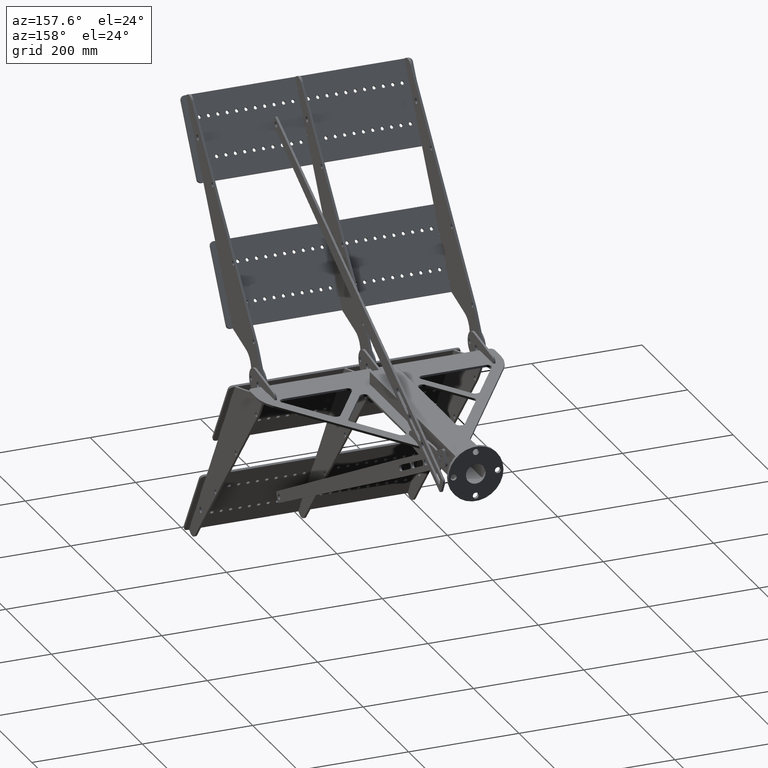
[diagram: clean part render]
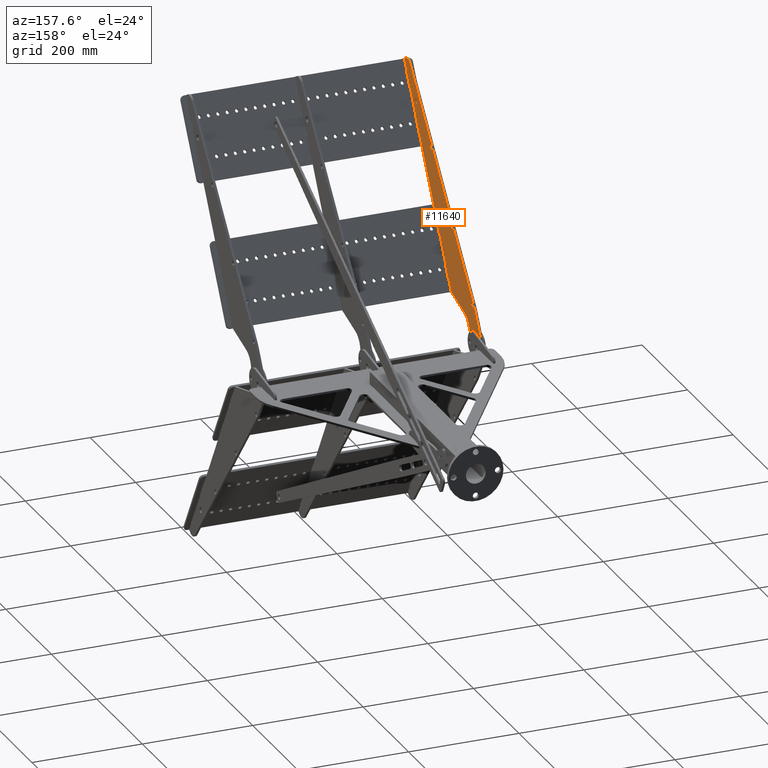
[diagram: same view with one face highlighted and labeled with its STEP entity id]
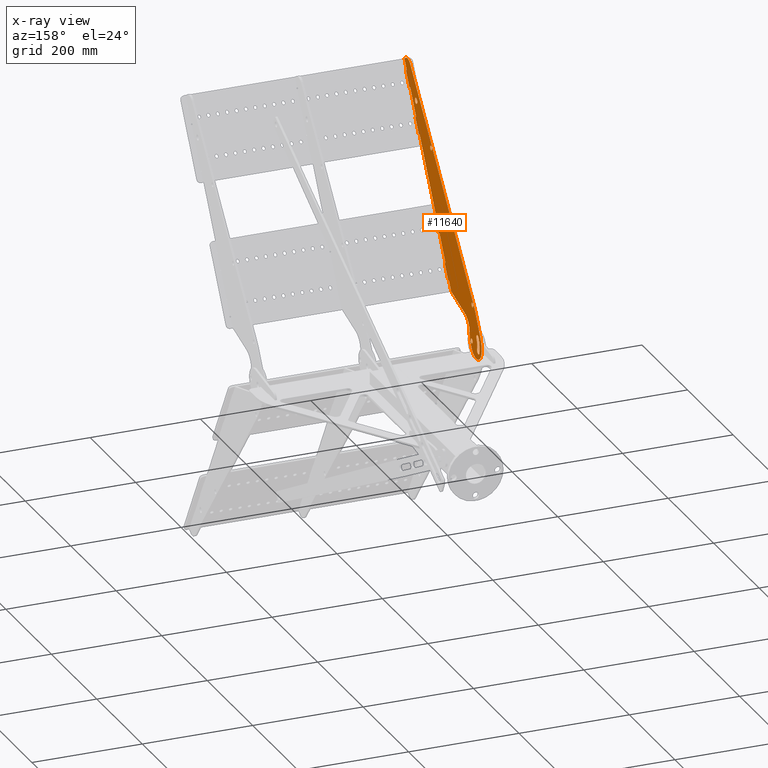
[diagram: x-ray of the same camera — body ghosted, the highlighted face saturated]
A machine part, auxiliary view. The second image highlights one B-rep face of the part: STEP entity #11640.
The next image is the same camera in x-ray: the body ghosted, the highlighted face saturated — about 0% of this face is hidden behind the body in this view.
In plain terms, the highlighted planar face has unit normal (-1, -0, 0).
Its self-contained STEP definition (entity closure, byte-faithful):
#25 = CARTESIAN_POINT ( 'NONE',  ( 416.9238815542515200, 35.50252531694239600, 1.110223024625156500E-013 ) ) ;
#28 = AXIS2_PLACEMENT_3D ( 'NONE', #12447, #4609, #13766 ) ;
#42 = CIRCLE ( 'NONE', #1644, 35.19999999999999600 ) ;
#47 = CARTESIAN_POINT ( 'NONE',  ( 28.28427124746194500, 43.12994231491134700, 1.110223024625156500E-013 ) ) ;
#125 = VECTOR ( 'NONE', #4634, 1000.000000000000000 ) ;
#143 = VECTOR ( 'NONE', #3751, 1000.000000000000000 ) ;
#164 = CARTESIAN_POINT ( 'NONE',  ( 363.9238815542518100, 16.50252531694210100, -1.665334536937734800E-013 ) ) ;
#218 = EDGE_CURVE ( 'NONE', #16274, #14858, #562, .T. ) ;
#275 = EDGE_CURVE ( 'NONE', #11916, #5224, #4287, .T. ) ;
#300 = VERTEX_POINT ( 'NONE', #9203 ) ;
#313 = CARTESIAN_POINT ( 'NONE',  ( 1.110223024625156200E-013, 74.19999999999997400, 2.220446049250313600E-013 ) ) ;
#384 = AXIS2_PLACEMENT_3D ( 'NONE', #7703, #16848, #9001 ) ;
#413 = CIRCLE ( 'NONE', #7760, 4.000000000000003600 ) ;
#482 = CIRCLE ( 'NONE', #4110, 5.199999999999982400 ) ;
#492 = VERTEX_POINT ( 'NONE', #4077 ) ;
#494 = CIRCLE ( 'NONE', #2715, 4.000000000000003600 ) ;
#556 = ORIENTED_EDGE ( 'NONE', *, *, #3286, .T. ) ;
#562 = CIRCLE ( 'NONE', #9082, 2.000000000000001800 ) ;
#711 = ORIENTED_EDGE ( 'NONE', *, *, #275, .F. ) ;
#724 = ORIENTED_EDGE ( 'NONE', *, *, #16232, .T. ) ;
#811 = VECTOR ( 'NONE', #7581, 1000.000000000000000 ) ;
#816 = CIRCLE ( 'NONE', #8629, 2.000000000000001800 ) ;
#827 = DIRECTION ( 'NONE',  ( 0.0000000000000000000, 1.000000000000000000, 9.481501264675605100E-030 ) ) ;
#843 = CARTESIAN_POINT ( 'NONE',  ( 219.9238815542514100, 18.50252531694196300, -1.110223024625156500E-013 ) ) ;
#851 = CARTESIAN_POINT ( 'NONE',  ( -17.53624817342638000, 87.53624817342631600, 0.0000000000000000000 ) ) ;
#1038 = LINE ( 'NONE', #5407, #4153 ) ;
#1093 = DIRECTION ( 'NONE',  ( -1.000000000000000000, 1.276756478318930200E-015, 0.0000000000000000000 ) ) ;
#1111 = CIRCLE ( 'NONE', #5371, 5.199999999999982400 ) ;
#1145 = EDGE_CURVE ( 'NONE', #15514, #12483, #14624, .T. ) ;
#1146 = DIRECTION ( 'NONE',  ( 4.531097719251421400E-014, 1.000000000000000000, 1.175279489262832200E-029 ) ) ;
#1171 = CARTESIAN_POINT ( 'NONE',  ( 443.9238815542522000, 18.50252531694221500, 0.0000000000000000000 ) ) ;
#1205 = CARTESIAN_POINT ( 'NONE',  ( 1.115366541181575400E-013, 65.79999999999998300, 2.220446049250312600E-013 ) ) ;
#1216 = CARTESIAN_POINT ( 'NONE',  ( 193.9238815542516400, 16.50252531694199100, -1.665334536937734800E-013 ) ) ;
#1321 = VERTEX_POINT ( 'NONE', #3504 ) ;
#1365 = DIRECTION ( 'NONE',  ( 0.0000000000000000000, 1.000000000000000000, 9.481501264675654100E-030 ) ) ;
#1386 = DIRECTION ( 'NONE',  ( 0.0000000000000000000, 1.000000000000000000, 1.190091882876526300E-029 ) ) ;
#1459 = DIRECTION ( 'NONE',  ( -0.7071067811865487900, 0.7071067811865463500, 0.0000000000000000000 ) ) ;
#1589 = VERTEX_POINT ( 'NONE', #13777 ) ;
#1619 = VERTEX_POINT ( 'NONE', #3255 ) ;
#1639 = ORIENTED_EDGE ( 'NONE', *, *, #2185, .T. ) ;
#1644 = AXIS2_PLACEMENT_3D ( 'NONE', #7626, #16782, #8937 ) ;
#1681 = ORIENTED_EDGE ( 'NONE', *, *, #13117, .T. ) ;
#1694 = DIRECTION ( 'NONE',  ( 1.000000000000000000, -1.276756478318930200E-015, 0.0000000000000000000 ) ) ;
#1736 = AXIS2_PLACEMENT_3D ( 'NONE', #10554, #2676, #11849 ) ;
#1890 = ORIENTED_EDGE ( 'NONE', *, *, #4463, .F. ) ;
#1932 = AXIS2_PLACEMENT_3D ( 'NONE', #14630, #6804, #15946 ) ;
#1943 = CARTESIAN_POINT ( 'NONE',  ( 191.9238815542517500, 20.50252531694203400, -2.220446049250313100E-013 ) ) ;
#1957 = ORIENTED_EDGE ( 'NONE', *, *, #4220, .T. ) ;
#1971 = LINE ( 'NONE', #16789, #12048 ) ;
#2076 = DIRECTION ( 'NONE',  ( 8.116639157625580800E-030, -1.175279489262868900E-029, 1.000000000000000000 ) ) ;
#2111 = ORIENTED_EDGE ( 'NONE', *, *, #8248, .T. ) ;
#2112 = ORIENTED_EDGE ( 'NONE', *, *, #15080, .T. ) ;
#2117 = ORIENTED_EDGE ( 'NONE', *, *, #2342, .T. ) ;
#2120 = AXIS2_PLACEMENT_3D ( 'NONE', #14542, #6702, #15835 ) ;
#2142 = ORIENTED_EDGE ( 'NONE', *, *, #9571, .T. ) ;
#2163 = EDGE_CURVE ( 'NONE', #8543, #5583, #11856, .T. ) ;
#2171 = DIRECTION ( 'NONE',  ( 0.0000000000000000000, 1.000000000000000000, 1.232595164407829800E-029 ) ) ;
#2182 = ORIENTED_EDGE ( 'NONE', *, *, #5567, .T. ) ;
#2185 = EDGE_CURVE ( 'NONE', #4134, #15684, #10209, .T. ) ;
#2211 = VERTEX_POINT ( 'NONE', #1216 ) ;
#2321 = CARTESIAN_POINT ( 'NONE',  ( 416.9238815542515200, 40.70252531694237800, 1.110223024625157000E-013 ) ) ;
#2342 = EDGE_CURVE ( 'NONE', #13657, #2211, #14058, .T. ) ;
#2417 = CARTESIAN_POINT ( 'NONE',  ( 113.9238815542510300, 16.50252531694207300, -2.220446049250313100E-013 ) ) ;
#2419 = DIRECTION ( 'NONE',  ( 8.116639157625580800E-030, -1.175279489262868900E-029, 1.000000000000000000 ) ) ;
#2488 = DIRECTION ( 'NONE',  ( 0.0000000000000000000, 1.000000000000000000, 1.175279489262869000E-029 ) ) ;
#2561 = CARTESIAN_POINT ( 'NONE',  ( 221.9238815542518400, 20.50252531694213300, -1.850371707708594300E-013 ) ) ;
#2606 = CARTESIAN_POINT ( 'NONE',  ( 40.53798917334852800, 114.1421356237309800, 5.876397446314329600E-028 ) ) ;
#2641 = VERTEX_POINT ( 'NONE', #8350 ) ;
#2644 = CIRCLE ( 'NONE', #3896, 15.00000000000001400 ) ;
#2648 = LINE ( 'NONE', #3097, #16149 ) ;
#2657 = ORIENTED_EDGE ( 'NONE', *, *, #5344, .T. ) ;
#2676 = DIRECTION ( 'NONE',  ( 8.116639157625580800E-030, -1.175279489262868900E-029, 1.000000000000000000 ) ) ;
#2706 = ORIENTED_EDGE ( 'NONE', *, *, #16423, .T. ) ;
#2715 = AXIS2_PLACEMENT_3D ( 'NONE', #11033, #3165, #12327 ) ;
#2784 = CARTESIAN_POINT ( 'NONE',  ( 2.053912595556536400E-014, 105.1999999999999600, 0.0000000000000000000 ) ) ;
#2797 = ORIENTED_EDGE ( 'NONE', *, *, #13767, .T. ) ;
#2807 = VERTEX_POINT ( 'NONE', #12664 ) ;
#2835 = ORIENTED_EDGE ( 'NONE', *, *, #8152, .T. ) ;
#2933 = CIRCLE ( 'NONE', #3085, 4.199999999999995700 ) ;
#3010 = ORIENTED_EDGE ( 'NONE', *, *, #3606, .T. ) ;
#3085 = AXIS2_PLACEMENT_3D ( 'NONE', #4090, #13261, #5397 ) ;
#3097 = CARTESIAN_POINT ( 'NONE',  ( 56.93110662408997100, 112.7893134862842400, 0.0000000000000000000 ) ) ;
#3165 = DIRECTION ( 'NONE',  ( 8.116639157625580800E-030, -1.175279489262868900E-029, 1.000000000000000000 ) ) ;
#3193 = EDGE_CURVE ( 'NONE', #5958, #6205, #14651, .T. ) ;
#3245 = DIRECTION ( 'NONE',  ( -5.811686200182909600E-030, -1.175279489262870600E-029, 1.000000000000000000 ) ) ;
#3255 = CARTESIAN_POINT ( 'NONE',  ( 332.1596175921941400, 64.96975395245694100, 4.701117957051480100E-029 ) ) ;
#3286 = EDGE_CURVE ( 'NONE', #1321, #6405, #6011, .T. ) ;
#3296 = CARTESIAN_POINT ( 'NONE',  ( 471.9238815542519200, 20.50252531694329900, 1.110223024625156500E-013 ) ) ;
#3322 = DIRECTION ( 'NONE',  ( -1.276756478318930200E-015, 1.000000000000000000, 0.0000000000000000000 ) ) ;
#3371 = ORIENTED_EDGE ( 'NONE', *, *, #4152, .T. ) ;
#3430 = AXIS2_PLACEMENT_3D ( 'NONE', #5470, #14619, #6793 ) ;
#3432 = VERTEX_POINT ( 'NONE', #8295 ) ;
#3433 = CARTESIAN_POINT ( 'NONE',  ( 416.9238815542515200, 30.30252531694241500, 1.110223024625155900E-013 ) ) ;
#3444 = CIRCLE ( 'NONE', #16261, 4.000000000000003600 ) ;
#3504 = CARTESIAN_POINT ( 'NONE',  ( -24.89015869776641300, 94.89015869776642400, 6.513308411134238700E-014 ) ) ;
#3574 = DIRECTION ( 'NONE',  ( 8.116639157625580800E-030, -1.175279489262868900E-029, 1.000000000000000000 ) ) ;
#3606 = EDGE_CURVE ( 'NONE', #13452, #12693, #6196, .T. ) ;
#3627 = CARTESIAN_POINT ( 'NONE',  ( 443.9238815542518600, 16.50252531694265600, 4.440892098500626200E-013 ) ) ;
#3751 = DIRECTION ( 'NONE',  ( 1.276756478318930200E-015, -1.000000000000000000, 0.0000000000000000000 ) ) ;
#3828 = VECTOR ( 'NONE', #16033, 1000.000000000000000 ) ;
#3832 = DIRECTION ( 'NONE',  ( 8.116639157625580800E-030, -1.175279489262868900E-029, 1.000000000000000000 ) ) ;
#3887 = DIRECTION ( 'NONE',  ( 8.116639157625580800E-030, -1.175279489262868900E-029, 1.000000000000000000 ) ) ;
#3896 = AXIS2_PLACEMENT_3D ( 'NONE', #13456, #5585, #14751 ) ;
#4023 = ORIENTED_EDGE ( 'NONE', *, *, #15763, .T. ) ;
#4056 = CIRCLE ( 'NONE', #15862, 2.000000000000001800 ) ;
#4077 = CARTESIAN_POINT ( 'NONE',  ( 389.9238815542522600, 16.50252531694227900, -2.220446049250313100E-013 ) ) ;
#4090 = CARTESIAN_POINT ( 'NONE',  ( 1.110223024625156200E-013, 69.99999999999998600, 2.220446049250313100E-013 ) ) ;
#4101 = VECTOR ( 'NONE', #5718, 1000.000000000000000 ) ;
#4110 = AXIS2_PLACEMENT_3D ( 'NONE', #11415, #3574, #12722 ) ;
#4114 = EDGE_CURVE ( 'NONE', #492, #13747, #816, .T. ) ;
#4133 = CIRCLE ( 'NONE', #2120, 4.000000000000003600 ) ;
#4134 = VERTEX_POINT ( 'NONE', #9032 ) ;
#4152 = EDGE_CURVE ( 'NONE', #14333, #13413, #413, .T. ) ;
#4153 = VECTOR ( 'NONE', #9355, 1000.000000000000000 ) ;
#4220 = EDGE_CURVE ( 'NONE', #1619, #1589, #4133, .T. ) ;
#4226 = ORIENTED_EDGE ( 'NONE', *, *, #12633, .T. ) ;
#4287 = CIRCLE ( 'NONE', #1736, 44.14213562373096500 ) ;
#4290 = DIRECTION ( 'NONE',  ( 8.116639157625580800E-030, -1.175279489262868900E-029, 1.000000000000000000 ) ) ;
#4297 = AXIS2_PLACEMENT_3D ( 'NONE', #5067, #14196, #6356 ) ;
#4325 = VERTEX_POINT ( 'NONE', #16059 ) ;
#4363 = CARTESIAN_POINT ( 'NONE',  ( 491.9238815542516400, 27.78950842773933200, -1.110223024625157000E-013 ) ) ;
#4389 = DIRECTION ( 'NONE',  ( -1.276756478318930200E-015, 1.000000000000000000, 0.0000000000000000000 ) ) ;
#4405 = ORIENTED_EDGE ( 'NONE', *, *, #6155, .F. ) ;
#4406 = DIRECTION ( 'NONE',  ( 0.9864717786255325900, -0.1639311745074073800, 0.0000000000000000000 ) ) ;
#4463 = EDGE_CURVE ( 'NONE', #6912, #13070, #4056, .T. ) ;
#4477 = AXIS2_PLACEMENT_3D ( 'NONE', #10289, #2419, #11600 ) ;
#4531 = LINE ( 'NONE', #4717, #8038 ) ;
#4609 = DIRECTION ( 'NONE',  ( 8.116639157625580800E-030, -1.175279489262868900E-029, 1.000000000000000000 ) ) ;
#4634 = DIRECTION ( 'NONE',  ( -1.000000000000000000, -1.443289932012703900E-015, 0.0000000000000000000 ) ) ;
#4676 = CIRCLE ( 'NONE', #7985, 2.000000000000001800 ) ;
#4717 = CARTESIAN_POINT ( 'NONE',  ( 491.9238815542520300, 20.50252531694318800, -1.110223024625156500E-013 ) ) ;
#4779 = CARTESIAN_POINT ( 'NONE',  ( 221.9238815542517500, 20.50252531694213300, -1.110223024625156500E-013 ) ) ;
#4878 = CARTESIAN_POINT ( 'NONE',  ( 361.9238815542514700, 18.50252531694225800, -1.110223024625156500E-013 ) ) ;
#4898 = EDGE_CURVE ( 'NONE', #2807, #6978, #1971, .T. ) ;
#4913 = DIRECTION ( 'NONE',  ( 1.276756478318930200E-015, -1.000000000000000000, 0.0000000000000000000 ) ) ;
#4927 = CARTESIAN_POINT ( 'NONE',  ( 7.660538869913576300E-014, 94.79999999999998300, 0.0000000000000000000 ) ) ;
#4947 = DIRECTION ( 'NONE',  ( -1.000000000000000000, -1.443289932012703900E-015, 0.0000000000000000000 ) ) ;
#4956 = VERTEX_POINT ( 'NONE', #5232 ) ;
#5014 = VERTEX_POINT ( 'NONE', #13202 ) ;
#5015 = DIRECTION ( 'NONE',  ( 8.116639157625580800E-030, -1.175279489262868900E-029, 1.000000000000000000 ) ) ;
#5033 = CIRCLE ( 'NONE', #11096, 2.000000000000001800 ) ;
#5067 = CARTESIAN_POINT ( 'NONE',  ( 28.28427124746194500, 43.12994231491134700, 1.110223024625156500E-013 ) ) ;
#5077 = DIRECTION ( 'NONE',  ( -1.000000000000000000, 1.432187701766452300E-014, 0.0000000000000000000 ) ) ;
#5083 = EDGE_LOOP ( 'NONE', ( #16031, #2706 ) ) ;
#5106 = CIRCLE ( 'NONE', #28, 2.000000000000001800 ) ;
#5144 = EDGE_CURVE ( 'NONE', #2641, #9372, #8333, .T. ) ;
#5172 = CIRCLE ( 'NONE', #13198, 4.000000000000003600 ) ;
#5193 = VECTOR ( 'NONE', #1459, 999.9999999999998900 ) ;
#5224 = VERTEX_POINT ( 'NONE', #7202 ) ;
#5232 = CARTESIAN_POINT ( 'NONE',  ( -10.91406809829912900, 62.92893218813458100, -1.410335387115442000E-028 ) ) ;
#5299 = FACE_BOUND ( 'NONE', #8931, .T. ) ;
#5344 = EDGE_CURVE ( 'NONE', #8578, #7466, #482, .T. ) ;
#5371 = AXIS2_PLACEMENT_3D ( 'NONE', #25, #9215, #1365 ) ;
#5397 = DIRECTION ( 'NONE',  ( 0.0000000000000000000, 1.000000000000000000, 1.173900156578887800E-029 ) ) ;
#5407 = CARTESIAN_POINT ( 'NONE',  ( -0.2996473969623242300, 62.92893218813456700, 0.0000000000000000000 ) ) ;
#5455 = VERTEX_POINT ( 'NONE', #6499 ) ;
#5459 = VERTEX_POINT ( 'NONE', #16976 ) ;
#5470 = CARTESIAN_POINT ( 'NONE',  ( 55.94751957704546900, 106.8704828145309900, 0.0000000000000000000 ) ) ;
#5567 = EDGE_CURVE ( 'NONE', #5455, #4325, #14625, .T. ) ;
#5571 = EDGE_LOOP ( 'NONE', ( #4226, #3371 ) ) ;
#5575 = CIRCLE ( 'NONE', #5857, 23.99999999999999300 ) ;
#5583 = VERTEX_POINT ( 'NONE', #13212 ) ;
#5585 = DIRECTION ( 'NONE',  ( 8.116639157625580800E-030, -1.175279489262868900E-029, 1.000000000000000000 ) ) ;
#5605 = DIRECTION ( 'NONE',  ( -1.000000000000000000, -6.772360450213456500E-015, 0.0000000000000000000 ) ) ;
#5685 = EDGE_CURVE ( 'NONE', #13955, #12384, #8701, .T. ) ;
#5718 = DIRECTION ( 'NONE',  ( -1.000000000000000000, -7.771561172376099700E-016, 0.0000000000000000000 ) ) ;
#5797 = CARTESIAN_POINT ( 'NONE',  ( 28.28427124746194500, 72.12994231491134700, 1.110223024625159900E-013 ) ) ;
#5806 = DIRECTION ( 'NONE',  ( -1.276756478318930200E-015, 1.000000000000000000, 0.0000000000000000000 ) ) ;
#5857 = AXIS2_PLACEMENT_3D ( 'NONE', #6427, #15578, #7764 ) ;
#5864 = LINE ( 'NONE', #13669, #14496 ) ;
#5958 = VERTEX_POINT ( 'NONE', #6841 ) ;
#5973 = CARTESIAN_POINT ( 'NONE',  ( 113.9238815542511700, 18.50252531694190900, -1.110223024625156500E-013 ) ) ;
#6011 = CIRCLE ( 'NONE', #7968, 5.200000000000009900 ) ;
#6104 = CARTESIAN_POINT ( 'NONE',  ( 111.9238815542511100, 20.50252531694188800, -1.110223024625156500E-013 ) ) ;
#6144 = CIRCLE ( 'NONE', #384, 24.80000000000000400 ) ;
#6155 = EDGE_CURVE ( 'NONE', #3432, #300, #15205, .T. ) ;
#6172 = VECTOR ( 'NONE', #5605, 1000.000000000000000 ) ;
#6196 = LINE ( 'NONE', #4779, #6638 ) ;
#6205 = VERTEX_POINT ( 'NONE', #6104 ) ;
#6227 = CARTESIAN_POINT ( 'NONE',  ( 471.9238815542519200, 18.50252531694235400, 2.220446049250313100E-013 ) ) ;
#6356 = DIRECTION ( 'NONE',  ( -1.794541526872558900E-015, 1.000000000000000000, 1.190091882876526300E-029 ) ) ;
#6377 = LINE ( 'NONE', #3627, #7823 ) ;
#6390 = ORIENTED_EDGE ( 'NONE', *, *, #1145, .T. ) ;
#6395 = LINE ( 'NONE', #15422, #9880 ) ;
#6405 = VERTEX_POINT ( 'NONE', #851 ) ;
#6427 = CARTESIAN_POINT ( 'NONE',  ( -10.91406809829913100, 86.92893218813459600, 0.0000000000000000000 ) ) ;
#6432 = CARTESIAN_POINT ( 'NONE',  ( 141.9238815542513000, 20.50252531694193800, -1.110223024625156500E-013 ) ) ;
#6499 = CARTESIAN_POINT ( 'NONE',  ( 55.94751957704546900, 110.8704828145309900, 4.701117957051480100E-029 ) ) ;
#6554 = EDGE_CURVE ( 'NONE', #5224, #4956, #5575, .T. ) ;
#6624 = ORIENTED_EDGE ( 'NONE', *, *, #11060, .T. ) ;
#6638 = VECTOR ( 'NONE', #10050, 1000.000000000000000 ) ;
#6650 = ORIENTED_EDGE ( 'NONE', *, *, #15155, .T. ) ;
#6702 = DIRECTION ( 'NONE',  ( 8.116639157625580800E-030, -1.175279489262868900E-029, 1.000000000000000000 ) ) ;
#6720 = ORIENTED_EDGE ( 'NONE', *, *, #5144, .T. ) ;
#6731 = CIRCLE ( 'NONE', #14867, 4.199999999999995700 ) ;
#6793 = DIRECTION ( 'NONE',  ( 0.0000000000000000000, 1.000000000000000000, 1.175279489262869000E-029 ) ) ;
#6804 = DIRECTION ( 'NONE',  ( 8.116639157625580800E-030, -1.175279489262868900E-029, 1.000000000000000000 ) ) ;
#6841 = CARTESIAN_POINT ( 'NONE',  ( 111.9238815542511400, 18.50252531694192400, -1.110223024625156500E-013 ) ) ;
#6867 = DIRECTION ( 'NONE',  ( 8.116639157625580800E-030, -1.175279489262868900E-029, 1.000000000000000000 ) ) ;
#6877 = DIRECTION ( 'NONE',  ( 8.116639157625580800E-030, -1.175279489262868900E-029, 1.000000000000000000 ) ) ;
#6912 = VERTEX_POINT ( 'NONE', #4878 ) ;
#6978 = VERTEX_POINT ( 'NONE', #14082 ) ;
#7186 = ORIENTED_EDGE ( 'NONE', *, *, #9533, .T. ) ;
#7202 = CARTESIAN_POINT ( 'NONE',  ( -23.91852995141922700, 107.1002973355593800, 0.0000000000000000000 ) ) ;
#7238 = ORIENTED_EDGE ( 'NONE', *, *, #2163, .T. ) ;
#7291 = EDGE_LOOP ( 'NONE', ( #6624, #12910, #2835, #724, #11170, #16908, #2111, #14509, #2797, #16364, #9792, #14999, #1681, #1890, #8603, #12054, #3010, #13439, #2117, #14832, #6720, #8524, #1639, #16574, #7238, #10929, #7642, #10883, #14283, #2142, #2112, #4405, #6650, #8825, #711, #10886, #8249 ) ) ;
#7322 = DIRECTION ( 'NONE',  ( 0.0000000000000000000, 1.000000000000000000, 1.232595164407829800E-029 ) ) ;
#7339 = CARTESIAN_POINT ( 'NONE',  ( -0.2996473969623311700, 82.92893218813448200, 0.0000000000000000000 ) ) ;
#7359 = DIRECTION ( 'NONE',  ( 1.276756478318930200E-015, -1.000000000000000000, 0.0000000000000000000 ) ) ;
#7466 = VERTEX_POINT ( 'NONE', #2321 ) ;
#7539 = VECTOR ( 'NONE', #4913, 1000.000000000000000 ) ;
#7550 = DIRECTION ( 'NONE',  ( -1.000000000000000000, -1.110223024625156300E-016, 0.0000000000000000000 ) ) ;
#7555 = LINE ( 'NONE', #16116, #14104 ) ;
#7581 = DIRECTION ( 'NONE',  ( 1.276756478318930200E-015, -1.000000000000000000, 0.0000000000000000000 ) ) ;
#7626 = CARTESIAN_POINT ( 'NONE',  ( 1.110223024625156200E-013, 69.99999999999998600, 0.0000000000000000000 ) ) ;
#7642 = ORIENTED_EDGE ( 'NONE', *, *, #3193, .T. ) ;
#7703 = CARTESIAN_POINT ( 'NONE',  ( 1.110223024625156200E-013, 69.99999999999998600, 0.0000000000000000000 ) ) ;
#7736 = AXIS2_PLACEMENT_3D ( 'NONE', #7339, #16465, #8646 ) ;
#7760 = AXIS2_PLACEMENT_3D ( 'NONE', #11735, #3887, #13061 ) ;
#7764 = DIRECTION ( 'NONE',  ( 0.0000000000000000000, 1.000000000000000000, 1.175279489262869000E-029 ) ) ;
#7823 = VECTOR ( 'NONE', #4947, 1000.000000000000000 ) ;
#7864 = EDGE_CURVE ( 'NONE', #5014, #14365, #12164, .T. ) ;
#7968 = AXIS2_PLACEMENT_3D ( 'NONE', #16532, #8692, #827 ) ;
#7985 = AXIS2_PLACEMENT_3D ( 'NONE', #9945, #2076, #11262 ) ;
#8038 = VECTOR ( 'NONE', #7359, 1000.000000000000000 ) ;
#8063 = VERTEX_POINT ( 'NONE', #5797 ) ;
#8152 = EDGE_CURVE ( 'NONE', #15248, #5459, #4531, .T. ) ;
#8174 = VECTOR ( 'NONE', #15067, 1000.000000000000000 ) ;
#8187 = CARTESIAN_POINT ( 'NONE',  ( 1.392016812747313500E-013, 114.1421356237309900, 2.593967330541543800E-028 ) ) ;
#8248 = EDGE_CURVE ( 'NONE', #10155, #14858, #6377, .T. ) ;
#8249 = ORIENTED_EDGE ( 'NONE', *, *, #5685, .F. ) ;
#8266 = EDGE_CURVE ( 'NONE', #15765, #8674, #11286, .T. ) ;
#8295 = CARTESIAN_POINT ( 'NONE',  ( -0.2996473969623382700, 62.92893218813453200, -1.175279489262862500E-028 ) ) ;
#8297 = EDGE_CURVE ( 'NONE', #15514, #6405, #6144, .T. ) ;
#8299 = CARTESIAN_POINT ( 'NONE',  ( 391.9238815542519800, 18.50252531694243500, -2.220446049250313100E-013 ) ) ;
#8333 = LINE ( 'NONE', #13561, #11808 ) ;
#8350 = CARTESIAN_POINT ( 'NONE',  ( 191.9238815542515200, 18.50252531694210500, -2.220446049250313100E-013 ) ) ;
#8366 = VERTEX_POINT ( 'NONE', #1205 ) ;
#8373 = FACE_BOUND ( 'NONE', #13609, .T. ) ;
#8387 = EDGE_LOOP ( 'NONE', ( #7186, #556, #12754, #6390 ) ) ;
#8524 = ORIENTED_EDGE ( 'NONE', *, *, #10164, .T. ) ;
#8543 = VERTEX_POINT ( 'NONE', #9961 ) ;
#8578 = VERTEX_POINT ( 'NONE', #3433 ) ;
#8603 = ORIENTED_EDGE ( 'NONE', *, *, #16096, .T. ) ;
#8629 = AXIS2_PLACEMENT_3D ( 'NONE', #11678, #3832, #12993 ) ;
#8646 = DIRECTION ( 'NONE',  ( 2.664426838883126800E-015, 1.000000000000000000, 1.175279489262866700E-029 ) ) ;
#8674 = VERTEX_POINT ( 'NONE', #6227 ) ;
#8692 = DIRECTION ( 'NONE',  ( 8.116639157625580800E-030, -1.175279489262868900E-029, 1.000000000000000000 ) ) ;
#8700 = VERTEX_POINT ( 'NONE', #15374 ) ;
#8701 = CIRCLE ( 'NONE', #15712, 99.99999999999997200 ) ;
#8754 = FACE_BOUND ( 'NONE', #8792, .T. ) ;
#8782 = EDGE_CURVE ( 'NONE', #7466, #8578, #1111, .T. ) ;
#8792 = EDGE_LOOP ( 'NONE', ( #1957, #15452 ) ) ;
#8825 = ORIENTED_EDGE ( 'NONE', *, *, #6554, .F. ) ;
#8833 = AXIS2_PLACEMENT_3D ( 'NONE', #5973, #15142, #7322 ) ;
#8889 = CARTESIAN_POINT ( 'NONE',  ( 471.9238815542519200, 20.50252531694329900, 0.0000000000000000000 ) ) ;
#8931 = EDGE_LOOP ( 'NONE', ( #2182, #4023 ) ) ;
#8937 = DIRECTION ( 'NONE',  ( -2.664535259100375700E-015, 1.000000000000000000, 1.175279489262871200E-029 ) ) ;
#8942 = LINE ( 'NONE', #14758, #13851 ) ;
#9000 = DIRECTION ( 'NONE',  ( 8.116639157625580800E-030, -1.175279489262868900E-029, 1.000000000000000000 ) ) ;
#9001 = DIRECTION ( 'NONE',  ( -1.776356839400250900E-015, 1.000000000000000000, 1.175279489262870300E-029 ) ) ;
#9032 = CARTESIAN_POINT ( 'NONE',  ( 141.9238815542513800, 20.50252531694193800, -1.850371707708594300E-013 ) ) ;
#9082 = AXIS2_PLACEMENT_3D ( 'NONE', #1171, #10371, #2488 ) ;
#9203 = CARTESIAN_POINT ( 'NONE',  ( 11.36725817219040400, 66.68444652559443900, 7.816876397871007500E-014 ) ) ;
#9215 = DIRECTION ( 'NONE',  ( 8.116639157625580800E-030, -1.175279489262868900E-029, 1.000000000000000000 ) ) ;
#9234 = DIRECTION ( 'NONE',  ( 8.116639157625580800E-030, -1.175279489262868900E-029, 1.000000000000000000 ) ) ;
#9263 = CIRCLE ( 'NONE', #16799, 29.00000000000000400 ) ;
#9355 = DIRECTION ( 'NONE',  ( -1.000000000000000000, 1.276756478318930200E-015, 0.0000000000000000000 ) ) ;
#9372 = VERTEX_POINT ( 'NONE', #1943 ) ;
#9533 = EDGE_CURVE ( 'NONE', #12483, #1321, #42, .T. ) ;
#9571 = EDGE_CURVE ( 'NONE', #14365, #8063, #10108, .T. ) ;
#9711 = EDGE_CURVE ( 'NONE', #13659, #8366, #2933, .T. ) ;
#9792 = ORIENTED_EDGE ( 'NONE', *, *, #13843, .T. ) ;
#9853 = EDGE_CURVE ( 'NONE', #11477, #13452, #13180, .T. ) ;
#9880 = VECTOR ( 'NONE', #7550, 1000.000000000000000 ) ;
#9945 = CARTESIAN_POINT ( 'NONE',  ( 139.9238815542509000, 18.50252531694185300, -2.220446049250313100E-013 ) ) ;
#9961 = CARTESIAN_POINT ( 'NONE',  ( 139.9238815542509800, 16.50252531694194500, -2.220446049250313100E-013 ) ) ;
#10038 = DIRECTION ( 'NONE',  ( 8.116639157625580800E-030, -1.175279489262868900E-029, 1.000000000000000000 ) ) ;
#10050 = DIRECTION ( 'NONE',  ( 1.276756478318930200E-015, -1.000000000000000000, 0.0000000000000000000 ) ) ;
#10108 = CIRCLE ( 'NONE', #4297, 29.00000000000000400 ) ;
#10155 = VERTEX_POINT ( 'NONE', #14062 ) ;
#10164 = EDGE_CURVE ( 'NONE', #9372, #4134, #6395, .T. ) ;
#10209 = LINE ( 'NONE', #6432, #143 ) ;
#10289 = CARTESIAN_POINT ( 'NONE',  ( 193.9238815542513200, 18.50252531694203400, -2.220446049250313100E-013 ) ) ;
#10371 = DIRECTION ( 'NONE',  ( 8.116639157625580800E-030, -1.175279489262868900E-029, 1.000000000000000000 ) ) ;
#10412 = EDGE_CURVE ( 'NONE', #1589, #1619, #5172, .T. ) ;
#10554 = CARTESIAN_POINT ( 'NONE',  ( 1.110223024625156200E-013, 69.99999999999998600, 0.0000000000000000000 ) ) ;
#10784 = CARTESIAN_POINT ( 'NONE',  ( 361.9238815542511800, 20.50252531694300400, -1.480297366166875300E-013 ) ) ;
#10883 = ORIENTED_EDGE ( 'NONE', *, *, #16716, .T. ) ;
#10886 = ORIENTED_EDGE ( 'NONE', *, *, #11950, .T. ) ;
#10929 = ORIENTED_EDGE ( 'NONE', *, *, #11199, .F. ) ;
#11033 = CARTESIAN_POINT ( 'NONE',  ( 194.0535685846198500, 83.92011838349388600, -3.330669073875469600E-013 ) ) ;
#11060 = EDGE_CURVE ( 'NONE', #13955, #8700, #2648, .T. ) ;
#11096 = AXIS2_PLACEMENT_3D ( 'NONE', #843, #10038, #2171 ) ;
#11099 = CARTESIAN_POINT ( 'NONE',  ( 40.53798917334873400, 14.14213562373095600, -1.110223024625156500E-013 ) ) ;
#11166 = VECTOR ( 'NONE', #3322, 1000.000000000000000 ) ;
#11170 = ORIENTED_EDGE ( 'NONE', *, *, #8266, .T. ) ;
#11199 = EDGE_CURVE ( 'NONE', #5958, #5583, #14723, .T. ) ;
#11216 = EDGE_CURVE ( 'NONE', #8543, #15684, #4676, .T. ) ;
#11262 = DIRECTION ( 'NONE',  ( 0.0000000000000000000, 1.000000000000000000, 1.232595164407829800E-029 ) ) ;
#11286 = LINE ( 'NONE', #8889, #811 ) ;
#11415 = CARTESIAN_POINT ( 'NONE',  ( 416.9238815542515200, 35.50252531694239600, 1.110223024625156500E-013 ) ) ;
#11477 = VERTEX_POINT ( 'NONE', #10784 ) ;
#11600 = DIRECTION ( 'NONE',  ( 0.0000000000000000000, 1.000000000000000000, 1.232595164407829800E-029 ) ) ;
#11640 = ADVANCED_FACE ( 'N', ( #8754, #15721, #5299, #12254, #15296, #11857, #8373 ), #12346, .F. ) ;
#11653 = LINE ( 'NONE', #3296, #8174 ) ;
#11663 = CARTESIAN_POINT ( 'NONE',  ( 56.93110662408964400, 112.7893134862843000, 5.131615145695058500E-028 ) ) ;
#11678 = CARTESIAN_POINT ( 'NONE',  ( 389.9238815542520900, 18.50252531694243500, -2.220446049250313100E-013 ) ) ;
#11735 = CARTESIAN_POINT ( 'NONE',  ( 194.0535685846198500, 83.92011838349388600, -3.330669073875469600E-013 ) ) ;
#11808 = VECTOR ( 'NONE', #4389, 1000.000000000000000 ) ;
#11848 = CARTESIAN_POINT ( 'NONE',  ( 91.92388155425111100, 20.50252531694198100, -1.110223024625156500E-013 ) ) ;
#11849 = DIRECTION ( 'NONE',  ( 0.0000000000000000000, 1.000000000000000000, 1.175279489262868900E-029 ) ) ;
#11856 = LINE ( 'NONE', #2417, #14894 ) ;
#11857 = FACE_BOUND ( 'NONE', #5083, .T. ) ;
#11863 = CARTESIAN_POINT ( 'NONE',  ( 141.9238815542513000, 18.50252531694192400, -1.665334536937734800E-013 ) ) ;
#11895 = DIRECTION ( 'NONE',  ( -1.276756478318930200E-015, 1.000000000000000000, 0.0000000000000000000 ) ) ;
#11916 = VERTEX_POINT ( 'NONE', #8187 ) ;
#11950 = EDGE_CURVE ( 'NONE', #11916, #12384, #8942, .T. ) ;
#12048 = VECTOR ( 'NONE', #5077, 1000.000000000000000 ) ;
#12054 = ORIENTED_EDGE ( 'NONE', *, *, #9853, .T. ) ;
#12127 = CARTESIAN_POINT ( 'NONE',  ( 363.9238815542516900, 18.50252531694241000, -1.110223024625156500E-013 ) ) ;
#12164 = LINE ( 'NONE', #11848, #5193 ) ;
#12251 = EDGE_CURVE ( 'NONE', #2641, #2211, #16272, .T. ) ;
#12254 = FACE_BOUND ( 'NONE', #8387, .T. ) ;
#12327 = DIRECTION ( 'NONE',  ( 0.0000000000000000000, 1.000000000000000000, 1.232595164407829800E-029 ) ) ;
#12346 = PLANE ( 'NONE',  #13146 ) ;
#12384 = VERTEX_POINT ( 'NONE', #2606 ) ;
#12401 = DIRECTION ( 'NONE',  ( 0.0000000000000000000, -1.000000000000000000, -1.175279489262870600E-029 ) ) ;
#12434 = CARTESIAN_POINT ( 'NONE',  ( 221.9238815542517500, 18.50252531694197000, -1.110223024625156500E-013 ) ) ;
#12447 = CARTESIAN_POINT ( 'NONE',  ( 469.9238815542518100, 18.50252531694232500, 4.440892098500626200E-013 ) ) ;
#12483 = VERTEX_POINT ( 'NONE', #2784 ) ;
#12633 = EDGE_CURVE ( 'NONE', #13413, #14333, #494, .T. ) ;
#12664 = CARTESIAN_POINT ( 'NONE',  ( 441.9238815542515800, 20.50252531694258800, 0.0000000000000000000 ) ) ;
#12693 = VERTEX_POINT ( 'NONE', #12434 ) ;
#12722 = DIRECTION ( 'NONE',  ( 0.0000000000000000000, 1.000000000000000000, 9.481501264675654100E-030 ) ) ;
#12734 = CARTESIAN_POINT ( 'NONE',  ( 391.9238815542519800, 20.50252531694332700, -2.220446049250313100E-013 ) ) ;
#12754 = ORIENTED_EDGE ( 'NONE', *, *, #8297, .F. ) ;
#12851 = CARTESIAN_POINT ( 'NONE',  ( 1.110223024625156200E-013, 69.99999999999998600, 2.220446049250313100E-013 ) ) ;
#12886 = LINE ( 'NONE', #13580, #4101 ) ;
#12910 = ORIENTED_EDGE ( 'NONE', *, *, #16066, .F. ) ;
#12993 = DIRECTION ( 'NONE',  ( 0.0000000000000000000, 1.000000000000000000, 1.232595164407829800E-029 ) ) ;
#13061 = DIRECTION ( 'NONE',  ( 0.0000000000000000000, 1.000000000000000000, 1.232595164407829800E-029 ) ) ;
#13070 = VERTEX_POINT ( 'NONE', #164 ) ;
#13117 = EDGE_CURVE ( 'NONE', #492, #13070, #12886, .T. ) ;
#13146 = AXIS2_PLACEMENT_3D ( 'NONE', #11099, #3245, #12401 ) ;
#13180 = LINE ( 'NONE', #13477, #6172 ) ;
#13198 = AXIS2_PLACEMENT_3D ( 'NONE', #14699, #6867, #16003 ) ;
#13202 = CARTESIAN_POINT ( 'NONE',  ( 91.92388155425119600, 20.50252531694198100, -1.110223024625156500E-013 ) ) ;
#13212 = CARTESIAN_POINT ( 'NONE',  ( 113.9238815542512400, 16.50252531694207300, -1.665334536937734800E-013 ) ) ;
#13261 = DIRECTION ( 'NONE',  ( 8.116639157625580800E-030, -1.175279489262868900E-029, 1.000000000000000000 ) ) ;
#13357 = CARTESIAN_POINT ( 'NONE',  ( 219.9238815542515200, 16.50252531694199800, -1.110223024625156500E-013 ) ) ;
#13413 = VERTEX_POINT ( 'NONE', #14178 ) ;
#13439 = ORIENTED_EDGE ( 'NONE', *, *, #14362, .F. ) ;
#13447 = DIRECTION ( 'NONE',  ( 0.0000000000000000000, 1.000000000000000000, 1.232595164407829800E-029 ) ) ;
#13452 = VERTEX_POINT ( 'NONE', #2561 ) ;
#13456 = CARTESIAN_POINT ( 'NONE',  ( 476.9238815542512400, 27.78950842773944500, -1.110223024625156500E-013 ) ) ;
#13477 = CARTESIAN_POINT ( 'NONE',  ( 221.9238815542517500, 20.50252531694213300, -2.220446049250313100E-013 ) ) ;
#13561 = CARTESIAN_POINT ( 'NONE',  ( 191.9238815542517200, 20.50252531694206200, -2.220446049250313100E-013 ) ) ;
#13580 = CARTESIAN_POINT ( 'NONE',  ( 363.9238815542514700, 16.50252531694210100, -2.220446049250313100E-013 ) ) ;
#13609 = EDGE_LOOP ( 'NONE', ( #16854, #2657 ) ) ;
#13657 = VERTEX_POINT ( 'NONE', #13357 ) ;
#13659 = VERTEX_POINT ( 'NONE', #313 ) ;
#13669 = CARTESIAN_POINT ( 'NONE',  ( 441.9238815542515800, 20.50252531694249200, 0.0000000000000000000 ) ) ;
#13694 = CARTESIAN_POINT ( 'NONE',  ( 111.9238815542511100, 20.50252531694193800, -1.110223024625156500E-013 ) ) ;
#13747 = VERTEX_POINT ( 'NONE', #8299 ) ;
#13766 = DIRECTION ( 'NONE',  ( 0.0000000000000000000, 1.000000000000000000, 0.0000000000000000000 ) ) ;
#13767 = EDGE_CURVE ( 'NONE', #16274, #2807, #5864, .T. ) ;
#13777 = CARTESIAN_POINT ( 'NONE',  ( 332.1596175921941400, 56.96975395245693400, -4.701117957051480100E-029 ) ) ;
#13788 = CARTESIAN_POINT ( 'NONE',  ( 193.9238815542517200, 16.50252531694199100, -1.110223024625156500E-013 ) ) ;
#13819 = CARTESIAN_POINT ( 'NONE',  ( 441.9238815542518600, 18.50252531694221500, 8.116639157628040100E-030 ) ) ;
#13843 = EDGE_CURVE ( 'NONE', #6978, #13747, #14516, .T. ) ;
#13851 = VECTOR ( 'NONE', #1694, 1000.000000000000000 ) ;
#13855 = LINE ( 'NONE', #14735, #3828 ) ;
#13955 = VERTEX_POINT ( 'NONE', #11663 ) ;
#14058 = LINE ( 'NONE', #13788, #125 ) ;
#14062 = CARTESIAN_POINT ( 'NONE',  ( 469.9238815542518100, 16.50252531694251000, 4.440892098500626200E-013 ) ) ;
#14082 = CARTESIAN_POINT ( 'NONE',  ( 391.9238815542516400, 20.50252531694332700, -7.401486830834376500E-014 ) ) ;
#14104 = VECTOR ( 'NONE', #11895, 1000.000000000000000 ) ;
#14158 = DIRECTION ( 'NONE',  ( 0.0000000000000000000, 1.000000000000000000, 1.173900156578887800E-029 ) ) ;
#14178 = CARTESIAN_POINT ( 'NONE',  ( 194.0535685846198500, 87.92011838349390000, -3.330669073875469100E-013 ) ) ;
#14196 = DIRECTION ( 'NONE',  ( 8.116639157625580800E-030, -1.175279489262868900E-029, 1.000000000000000000 ) ) ;
#14283 = ORIENTED_EDGE ( 'NONE', *, *, #7864, .T. ) ;
#14333 = VERTEX_POINT ( 'NONE', #16426 ) ;
#14362 = EDGE_CURVE ( 'NONE', #13657, #12693, #5033, .T. ) ;
#14365 = VERTEX_POINT ( 'NONE', #16548 ) ;
#14496 = VECTOR ( 'NONE', #5806, 1000.000000000000000 ) ;
#14509 = ORIENTED_EDGE ( 'NONE', *, *, #218, .F. ) ;
#14516 = LINE ( 'NONE', #12734, #7539 ) ;
#14542 = CARTESIAN_POINT ( 'NONE',  ( 332.1596175921941400, 60.96975395245693400, 0.0000000000000000000 ) ) ;
#14619 = DIRECTION ( 'NONE',  ( 8.116639157625580800E-030, -1.175279489262868900E-029, 1.000000000000000000 ) ) ;
#14624 = CIRCLE ( 'NONE', #1932, 5.199999999999982400 ) ;
#14625 = CIRCLE ( 'NONE', #3430, 4.000000000000003600 ) ;
#14630 = CARTESIAN_POINT ( 'NONE',  ( 2.775557561562887900E-014, 99.99999999999997200, 0.0000000000000000000 ) ) ;
#14651 = LINE ( 'NONE', #13694, #11166 ) ;
#14699 = CARTESIAN_POINT ( 'NONE',  ( 332.1596175921941400, 60.96975395245693400, 0.0000000000000000000 ) ) ;
#14710 = CARTESIAN_POINT ( 'NONE',  ( 55.94751957704546900, 106.8704828145309900, 0.0000000000000000000 ) ) ;
#14723 = CIRCLE ( 'NONE', #8833, 2.000000000000001800 ) ;
#14735 = CARTESIAN_POINT ( 'NONE',  ( 91.92388155425111100, 20.50252531694198100, -1.110223024625156500E-013 ) ) ;
#14751 = DIRECTION ( 'NONE',  ( 0.0000000000000000000, 1.000000000000000000, 1.150422153447307800E-029 ) ) ;
#14758 = CARTESIAN_POINT ( 'NONE',  ( 4.857225732735059900E-014, 114.1421356237310400, 0.0000000000000000000 ) ) ;
#14832 = ORIENTED_EDGE ( 'NONE', *, *, #12251, .F. ) ;
#14858 = VERTEX_POINT ( 'NONE', #16596 ) ;
#14867 = AXIS2_PLACEMENT_3D ( 'NONE', #12851, #5015, #14158 ) ;
#14894 = VECTOR ( 'NONE', #1093, 1000.000000000000000 ) ;
#14999 = ORIENTED_EDGE ( 'NONE', *, *, #4114, .F. ) ;
#15067 = DIRECTION ( 'NONE',  ( -1.000000000000000000, 1.276756478318930200E-015, 0.0000000000000000000 ) ) ;
#15080 = EDGE_CURVE ( 'NONE', #8063, #300, #9263, .T. ) ;
#15142 = DIRECTION ( 'NONE',  ( 8.116639157625580800E-030, -1.175279489262868900E-029, 1.000000000000000000 ) ) ;
#15155 = EDGE_CURVE ( 'NONE', #3432, #4956, #1038, .T. ) ;
#15205 = CIRCLE ( 'NONE', #7736, 20.00000000000000400 ) ;
#15248 = VERTEX_POINT ( 'NONE', #4363 ) ;
#15296 = FACE_OUTER_BOUND ( 'NONE', #7291, .T. ) ;
#15374 = CARTESIAN_POINT ( 'NONE',  ( 479.3828491718622900, 42.58658510712211200, -5.551115123125775100E-014 ) ) ;
#15422 = CARTESIAN_POINT ( 'NONE',  ( 141.9238815542513000, 20.50252531694193800, -2.220446049250313100E-013 ) ) ;
#15452 = ORIENTED_EDGE ( 'NONE', *, *, #10412, .T. ) ;
#15514 = VERTEX_POINT ( 'NONE', #4927 ) ;
#15578 = DIRECTION ( 'NONE',  ( 8.116639157625580800E-030, -1.175279489262868900E-029, 1.000000000000000000 ) ) ;
#15684 = VERTEX_POINT ( 'NONE', #11863 ) ;
#15712 = AXIS2_PLACEMENT_3D ( 'NONE', #16844, #9000, #1146 ) ;
#15721 = FACE_BOUND ( 'NONE', #5571, .T. ) ;
#15763 = EDGE_CURVE ( 'NONE', #4325, #5455, #3444, .T. ) ;
#15765 = VERTEX_POINT ( 'NONE', #15963 ) ;
#15835 = DIRECTION ( 'NONE',  ( 0.0000000000000000000, 1.000000000000000000, 1.175279489262869000E-029 ) ) ;
#15862 = AXIS2_PLACEMENT_3D ( 'NONE', #12127, #4290, #13447 ) ;
#15946 = DIRECTION ( 'NONE',  ( 1.776356839400252400E-015, 1.000000000000000000, 1.175279489262868800E-029 ) ) ;
#15963 = CARTESIAN_POINT ( 'NONE',  ( 471.9238815542517500, 20.50252531694329900, 7.401486830834376500E-014 ) ) ;
#16003 = DIRECTION ( 'NONE',  ( 0.0000000000000000000, 1.000000000000000000, 1.175279489262869000E-029 ) ) ;
#16017 = DIRECTION ( 'NONE',  ( 0.0000000000000000000, 1.000000000000000000, 1.175279489262869000E-029 ) ) ;
#16031 = ORIENTED_EDGE ( 'NONE', *, *, #9711, .T. ) ;
#16033 = DIRECTION ( 'NONE',  ( -1.000000000000000000, 1.276756478318930200E-015, 0.0000000000000000000 ) ) ;
#16059 = CARTESIAN_POINT ( 'NONE',  ( 55.94751957704546900, 102.8704828145309900, -4.701117957051480100E-029 ) ) ;
#16066 = EDGE_CURVE ( 'NONE', #15248, #8700, #2644, .T. ) ;
#16096 = EDGE_CURVE ( 'NONE', #6912, #11477, #7555, .T. ) ;
#16116 = CARTESIAN_POINT ( 'NONE',  ( 361.9238815542512400, 20.50252531694322000, -1.110223024625156500E-013 ) ) ;
#16149 = VECTOR ( 'NONE', #4406, 1000.000000000000100 ) ;
#16214 = EDGE_CURVE ( 'NONE', #10155, #8674, #5106, .T. ) ;
#16232 = EDGE_CURVE ( 'NONE', #5459, #15765, #11653, .T. ) ;
#16261 = AXIS2_PLACEMENT_3D ( 'NONE', #14710, #6877, #16017 ) ;
#16272 = CIRCLE ( 'NONE', #4477, 2.000000000000001800 ) ;
#16274 = VERTEX_POINT ( 'NONE', #13819 ) ;
#16364 = ORIENTED_EDGE ( 'NONE', *, *, #4898, .T. ) ;
#16423 = EDGE_CURVE ( 'NONE', #8366, #13659, #6731, .T. ) ;
#16426 = CARTESIAN_POINT ( 'NONE',  ( 194.0535685846198500, 79.92011838349388600, -3.330669073875470100E-013 ) ) ;
#16465 = DIRECTION ( 'NONE',  ( 8.116639157625580800E-030, -1.175279489262868900E-029, 1.000000000000000000 ) ) ;
#16532 = CARTESIAN_POINT ( 'NONE',  ( -21.21320343559641200, 91.21320343559638400, 1.110223024625156500E-013 ) ) ;
#16548 = CARTESIAN_POINT ( 'NONE',  ( 48.79036790187175400, 63.63603896932119900, 3.697785493223492800E-029 ) ) ;
#16574 = ORIENTED_EDGE ( 'NONE', *, *, #11216, .F. ) ;
#16596 = CARTESIAN_POINT ( 'NONE',  ( 443.9238815542519800, 16.50252531694265600, 2.220446049250313100E-013 ) ) ;
#16716 = EDGE_CURVE ( 'NONE', #6205, #5014, #13855, .T. ) ;
#16782 = DIRECTION ( 'NONE',  ( 8.116639157625580800E-030, -1.175279489262868900E-029, 1.000000000000000000 ) ) ;
#16789 = CARTESIAN_POINT ( 'NONE',  ( 391.9238815542519800, 20.50252531694332700, 0.0000000000000000000 ) ) ;
#16799 = AXIS2_PLACEMENT_3D ( 'NONE', #47, #9234, #1386 ) ;
#16844 = CARTESIAN_POINT ( 'NONE',  ( 40.53798917334859200, 14.14213562373115000, 0.0000000000000000000 ) ) ;
#16848 = DIRECTION ( 'NONE',  ( 8.116639157625580800E-030, -1.175279489262868900E-029, 1.000000000000000000 ) ) ;
#16854 = ORIENTED_EDGE ( 'NONE', *, *, #8782, .T. ) ;
#16908 = ORIENTED_EDGE ( 'NONE', *, *, #16214, .F. ) ;
#16976 = CARTESIAN_POINT ( 'NONE',  ( 491.9238815542519800, 20.50252531694323800, -3.700743415417188300E-014 ) ) ;